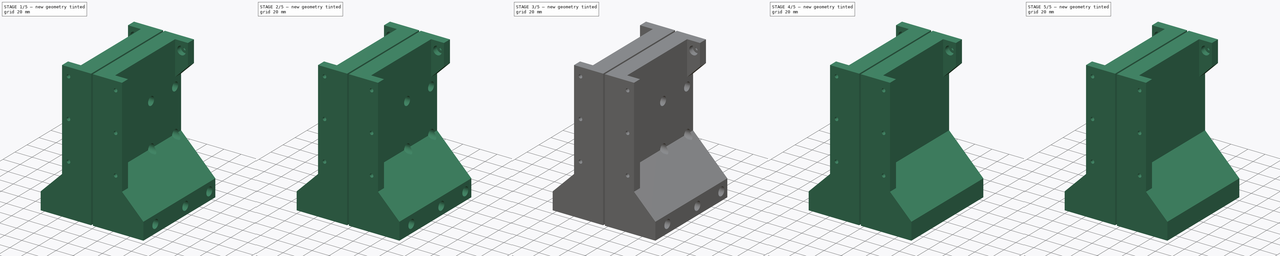
[diagram: build sequence overview — one tinted view per stage of 5, left to right]
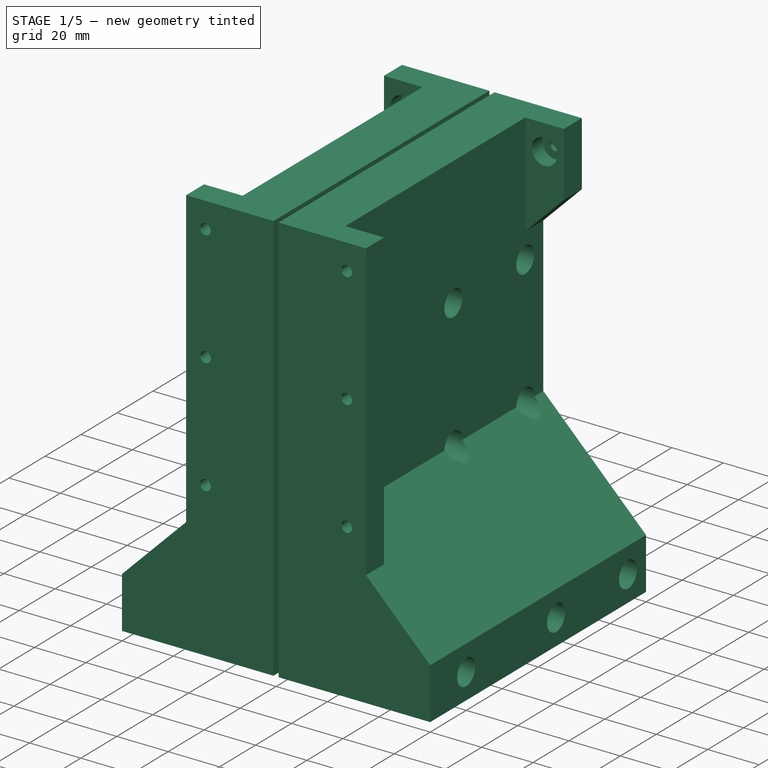
[diagram: stage 1 of 5 — iso view after this stage's code; geometry added in this stage tinted green]
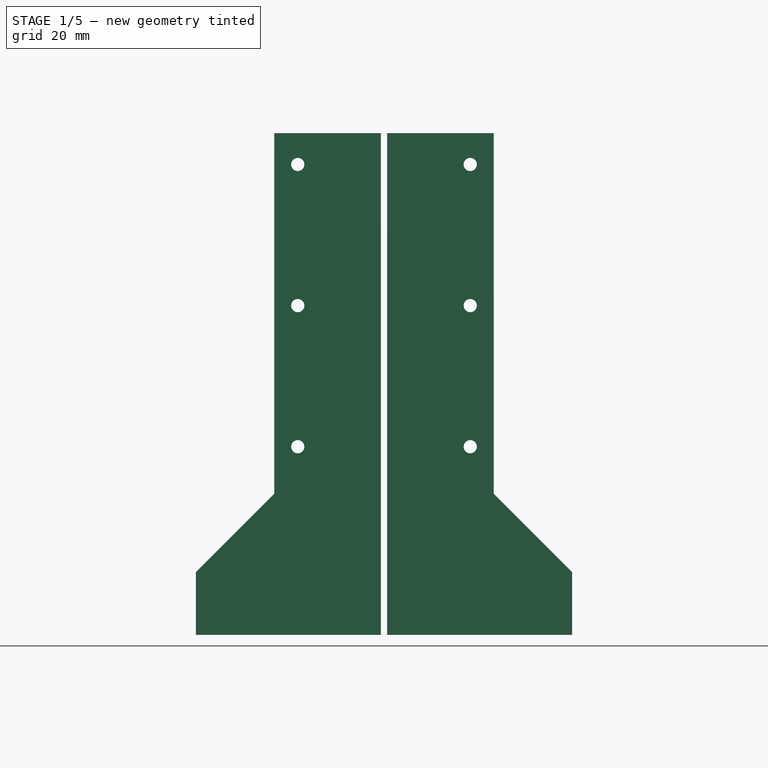
[diagram: stage 1 of 5 — front view after this stage's code; geometry added in this stage tinted green]
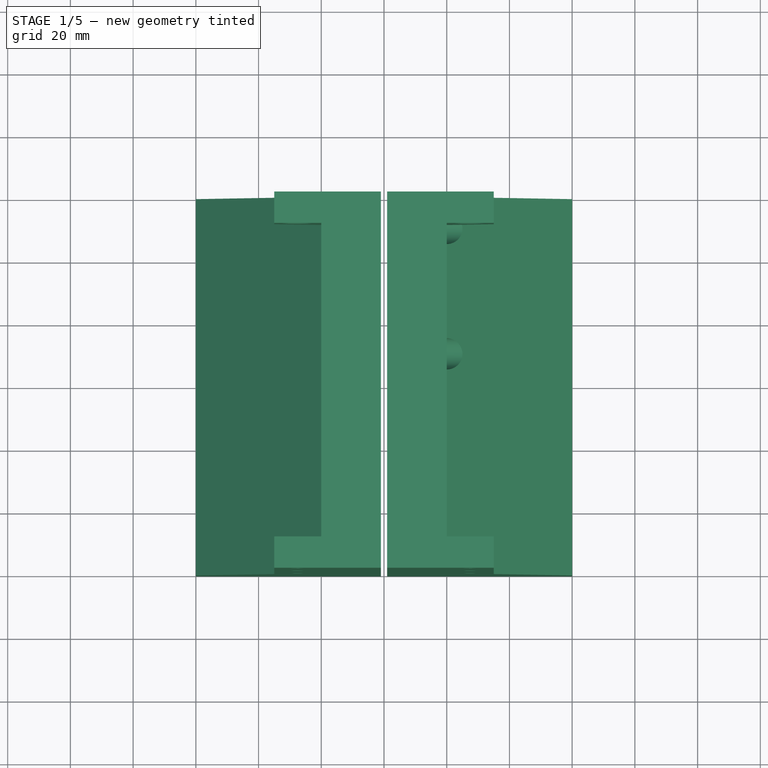
[diagram: stage 1 of 5 — top view after this stage's code; geometry added in this stage tinted green]
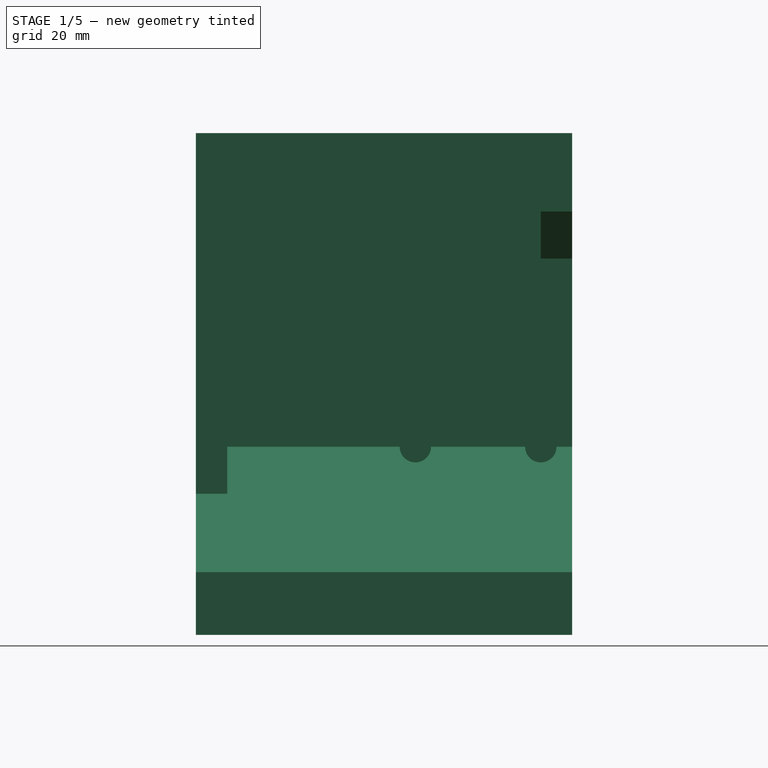
[diagram: stage 1 of 5 — right view after this stage's code; geometry added in this stage tinted green]
FCSTD DOCUMENT  (FreeCAD 2023.1231R38924 (Git))
Label: ClampMount_sym
License: All rights reserved
LicenseURL: https://en.wikipedia.org/wiki/All_rights_reserved
objects: Sketcher::SketchObject×10, PartDesign::Pocket×7, PartDesign::Solid×4, PartDesign::Pad×3, PartDesign::Split×2, PartDesign::CoordinateSystem×1, PartDesign::Body×1, PartDesign::ShapeBinder×1, PartDesign::Mirrored×1, App::Part×1
note: 64 computed .brp shape members not serialized (recipe doc carries the construction recipe); baked Part::Feature solids carry a one-line shape summary decoded from their .brp

FEATURE [Sketcher::SketchObject] Sketch002
  ArcFitTolerance = 1e-06
  AttachmentSupport = -> [YZ_Plane]
  ExternalBSplineMaxDegree = 5
  ExternalBSplineTolerance = 0.0001
  ExternalGeometry = -> [Split]
  FullyConstrained = true
  InternalTolerance = 1e-06
  InvalidShape = false
  MakeInternals = false
  MapMode = 5
  Placement = pos=(0,0,0) rot=(0.57735,0.57735,0.57735;2.0944rad)
  Support = -> [YZ_Plane]
  TreeRank = 19
  ValidateShape = false
  sketch-geometry (8):
    g0: LineSegment StartX=-115 StartY=150 StartZ=0 EndX=-5 EndY=150 EndZ=0
    g1: LineSegment StartX=-5 StartY=150 StartZ=0 EndX=-5 EndY=120 EndZ=0
    g2: LineSegment StartX=-115 StartY=120 StartZ=0 EndX=-115 EndY=150 EndZ=0
    g3: LineSegment StartX=-115 StartY=120 StartZ=0 EndX=-39.5 EndY=120 EndZ=0
    g4: LineSegment StartX=-39.5 StartY=120 StartZ=0 EndX=-39.5 EndY=0 EndZ=0
    g5: LineSegment StartX=-39.5 StartY=0 StartZ=0 EndX=-20 EndY=0 EndZ=0
    g6: LineSegment StartX=-20 StartY=0 StartZ=0 EndX=-20 EndY=120 EndZ=0
    g7: LineSegment StartX=-20 StartY=120 StartZ=0 EndX=-5 EndY=120 EndZ=0
  constraints (25):
    c: Coincident(g0,g1)
    c: Coincident(g2,g0)
    c: Horizontal(g0)
    c: Vertical(g1)
    c: Vertical(g2)
    c: DistanceX(g0,g0) = 110
    c: Coincident(g2,g3)
    c: Horizontal(g3)
    c: Coincident(g3,g4)
    c: PointOnObject(g4,g-1)
    c: Vertical(g4)
    c: Coincident(g4,g5)
    c: Horizontal(g5)
    c: Coincident(g5,g6)
    c: Vertical(g6)
    c: Coincident(g6,g7)
    c: Horizontal(g7)
    c: Coincident(g1,g7)
    c: DistanceX(g1,g-1) = 5
    c: DistanceX(g5,g5) = 19.5
    c: DistanceX(g7,g7) = 15
    c: DistanceY(g1,g1) = 30
    c: Horizontal(g3,g6)
    c: DistanceY(g0,g-3) = 10
    c: DistanceX(g3,g3) = 75.5
FEATURE [PartDesign::Pocket] Pocket001
  AddSubType = 1
  AlongSketchNormal = false
  AutoTaperInnerAngle = true
  BaseFeature = -> Split
  CheckUpToFaceLimits = true
  ClaimChildren = false
  Direction = (-1,2e-16,-3e-16)
  Fit = 0
  FitJoin = 0
  InnerFit = 0
  InnerFitJoin = 0
  InvalidShape = false
  Length = 6
  Length2 = 10
  Linearize = true
  Midplane = true
  NewSolid = false
  Profile = -> Sketch002
  ReferenceAxis = -> Sketch002 [N_Axis]
  Suppress = false
  TaperInnerAngle = 0
  TaperInnerAngleRev = 0
  TreeRank = 20
  Type = 0
  ValidateShape = true
  _ProfileBasedVersion = 1
  _Version = 1
FEATURE [PartDesign::Split] Split001
  BaseFeature = -> Mirrored
  Fragment = false
  InvalidShape = false
  Mode = 0
  NewSolid = false
  Solids = -> [Split001_i0,Split001_i1]
  Suppress = false
  Tolerance = 0
  TreeRank = 37
  ValidateShape = true
  _Version = 1
FEATURE [PartDesign::Solid] Split001_i0
  Active = false
  InvalidShape = false
  Parent = -> Split001
  TreeRank = 40
  ValidateShape = false
FEATURE [PartDesign::Solid] Split001_i1
  Active = true
  InvalidShape = false
  Parent = -> Split001
  TreeRank = 41
  ValidateShape = false
FEATURE [App::Part] Part  label="ClampMount1"
  ClaimAllChildren = false
  ExportMode = 1
  Group = -> [Body,Local_CS]
  Origin = -> Origin001
  TreeRank = 44
  _ExportChildren = -> [Body,Local_CS]
  _GroupVersion = 1
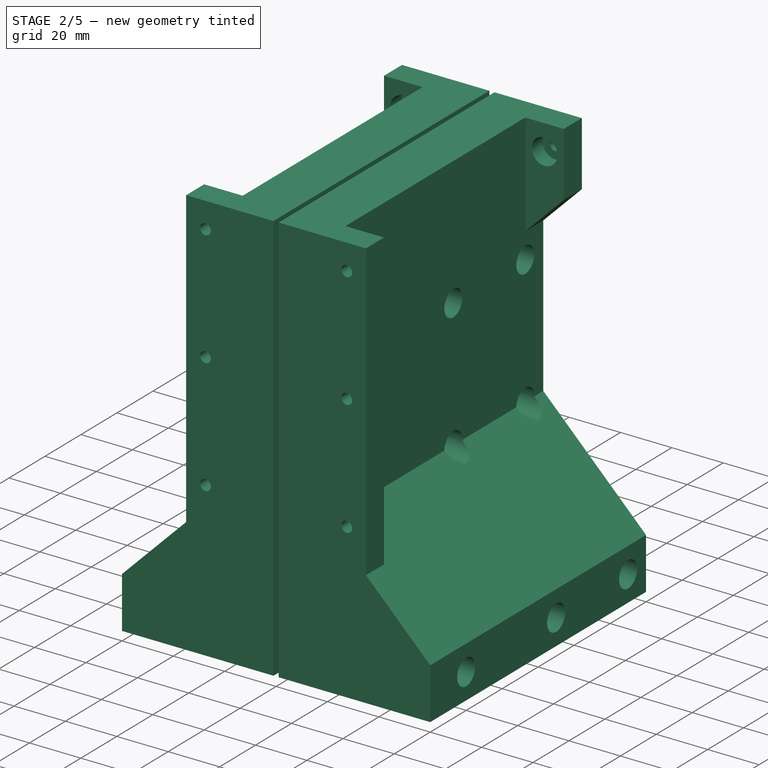
[diagram: stage 2 of 5 — iso view after this stage's code; geometry added in this stage tinted green]
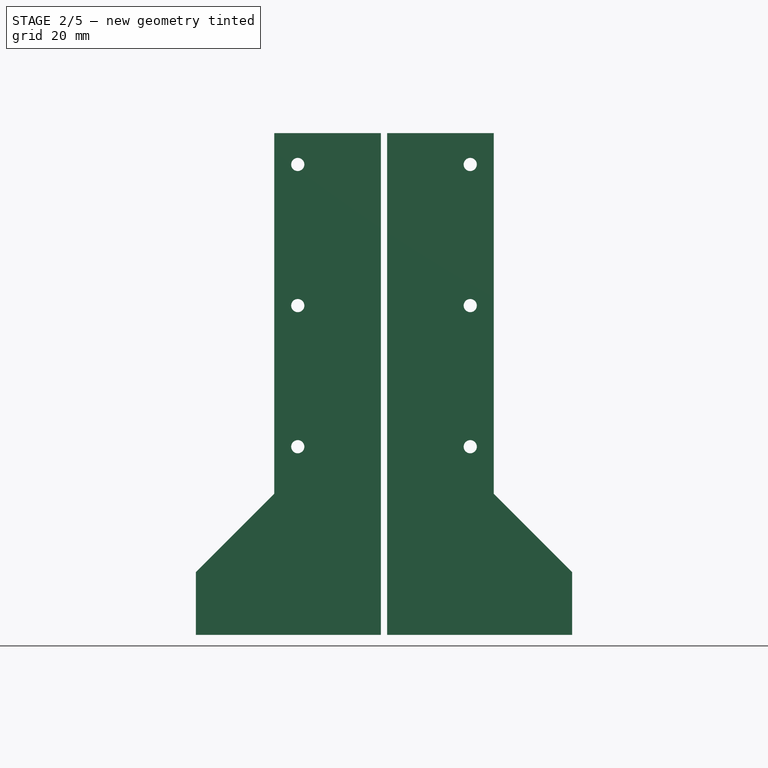
[diagram: stage 2 of 5 — front view after this stage's code; geometry added in this stage tinted green]
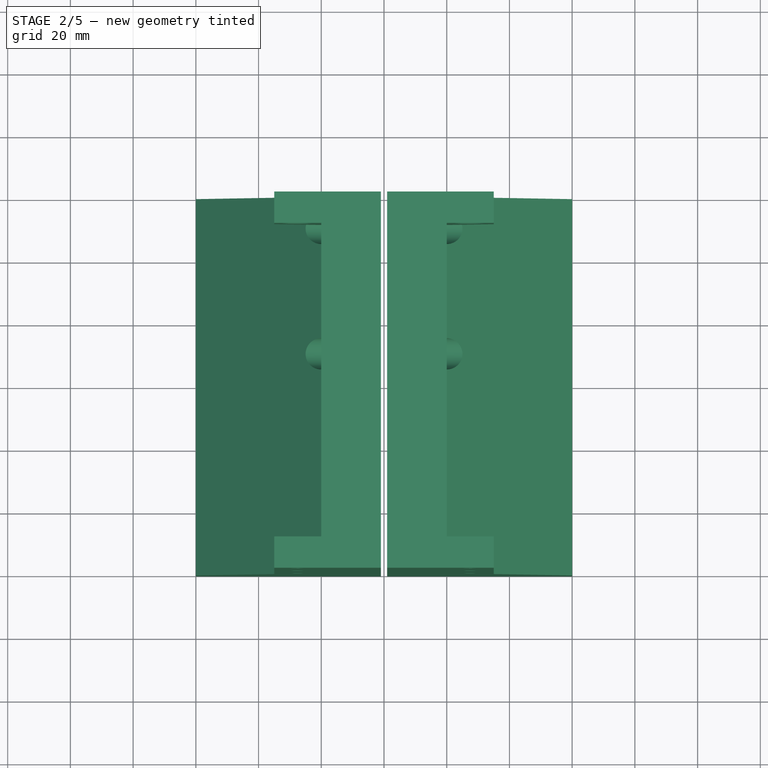
[diagram: stage 2 of 5 — top view after this stage's code; geometry added in this stage tinted green]
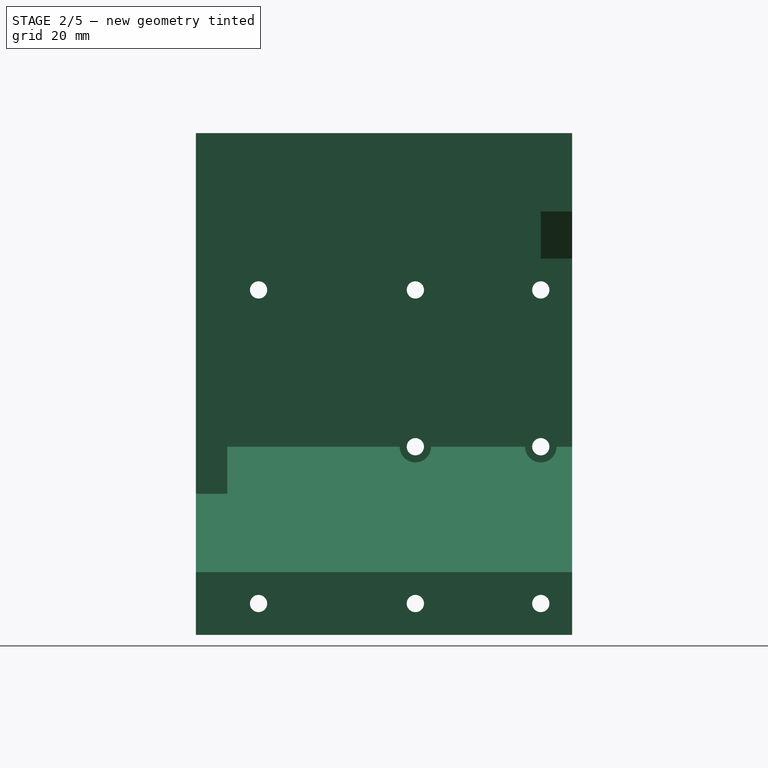
[diagram: stage 2 of 5 — right view after this stage's code; geometry added in this stage tinted green]
FEATURE [Sketcher::SketchObject] Sketch003
  ArcFitTolerance = 1e-06
  AttachmentSupport = -> [YZ_Plane]
  ExternalBSplineMaxDegree = 5
  ExternalBSplineTolerance = 0.0001
  ExternalGeometry = -> [Pocket001]
  FullyConstrained = true
  InternalTolerance = 1e-06
  InvalidShape = false
  MakeInternals = false
  MapMode = 5
  Placement = pos=(0,0,0) rot=(0.57735,0.57735,0.57735;2.0944rad)
  Support = -> [YZ_Plane]
  TreeRank = 21
  ValidateShape = false
  sketch-geometry (4):
    g0: LineSegment StartX=-115 StartY=120 StartZ=0 EndX=-5 EndY=120 EndZ=0
    g1: LineSegment StartX=-5 StartY=120 StartZ=0 EndX=-5 EndY=150 EndZ=0
    g2: LineSegment StartX=-5 StartY=150 StartZ=0 EndX=-115 EndY=150 EndZ=0
    g3: LineSegment StartX=-115 StartY=150 StartZ=0 EndX=-115 EndY=120 EndZ=0
  constraints (10):
    c: Coincident(g0,g1)
    c: Coincident(g1,g2)
    c: Coincident(g2,g3)
    c: Coincident(g3,g0)
    c: Horizontal(g0)
    c: Horizontal(g2)
    c: Vertical(g1)
    c: Vertical(g3)
    c: Coincident(g0,g-3)
    c: Coincident(g1,g-4)
FEATURE [PartDesign::Pocket] Pocket002
  AddSubType = 1
  AlongSketchNormal = false
  AutoTaperInnerAngle = true
  BaseFeature = -> Pocket001
  CheckUpToFaceLimits = true
  ClaimChildren = false
  Direction = (-1,2e-16,-3e-16)
  Fit = 0
  FitJoin = 0
  InnerFit = 0
  InnerFitJoin = 0
  InvalidShape = false
  Length = 24
  Length2 = 10
  Linearize = true
  Midplane = true
  NewSolid = false
  Profile = -> Sketch003
  ReferenceAxis = -> Sketch003 [N_Axis]
  Suppress = false
  TaperInnerAngle = 0
  TaperInnerAngleRev = 0
  TreeRank = 22
  Type = 0
  ValidateShape = true
  _ProfileBasedVersion = 1
  _Version = 1
FEATURE [PartDesign::Pocket] Pocket003
  AddSubType = 1
  AlongSketchNormal = false
  AutoTaperInnerAngle = true
  BaseFeature = -> Pocket002
  CheckUpToFaceLimits = true
  ClaimChildren = false
  Direction = (-1,2e-16,-3e-16)
  Fit = 0
  FitJoin = 0
  InnerFit = 0
  InnerFitJoin = 0
  InvalidShape = false
  Length = 5
  Length2 = 10
  Linearize = true
  NewSolid = false
  Profile = -> Sketch004
  ReferenceAxis = -> Sketch004 [N_Axis]
  Suppress = false
  TaperInnerAngle = 0
  TaperInnerAngleRev = 0
  TreeRank = 24
  Type = 1
  ValidateShape = true
  _ProfileBasedVersion = 1
  _Version = 1
FEATURE [PartDesign::Pocket] Pocket004
  AddSubType = 1
  AlongSketchNormal = false
  AutoTaperInnerAngle = true
  BaseFeature = -> Pocket003
  CheckUpToFaceLimits = true
  ClaimChildren = false
  Direction = (-1,2e-16,-3e-16)
  Fit = 0
  FitJoin = 0
  InnerFit = 0
  InnerFitJoin = 0
  InvalidShape = false
  Length = 5
  Length2 = 10
  Linearize = true
  NewSolid = false
  Profile = -> Sketch005
  ReferenceAxis = -> Sketch005 [N_Axis]
  Suppress = false
  TaperInnerAngle = 0
  TaperInnerAngleRev = 0
  TreeRank = 26
  Type = 1
  ValidateShape = true
  _ProfileBasedVersion = 1
  _Version = 1
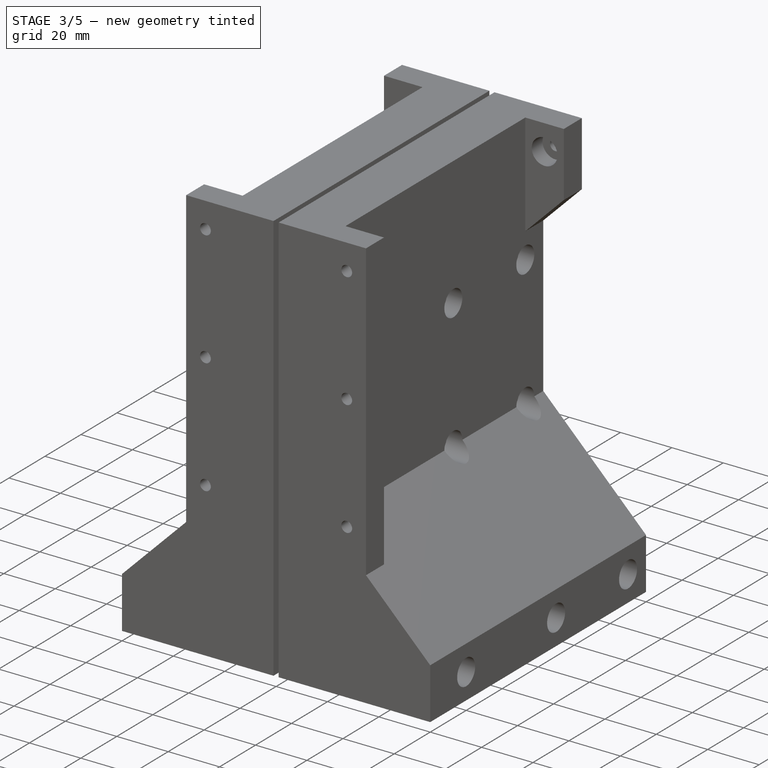
[diagram: stage 3 of 5 — iso view after this stage's code; geometry added in this stage tinted green]
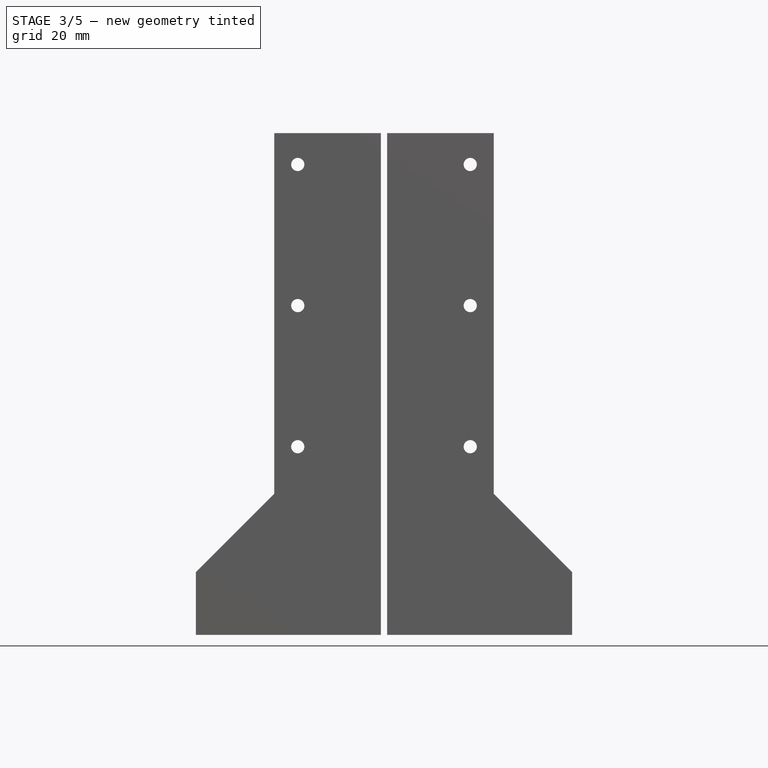
[diagram: stage 3 of 5 — front view after this stage's code; geometry added in this stage tinted green]
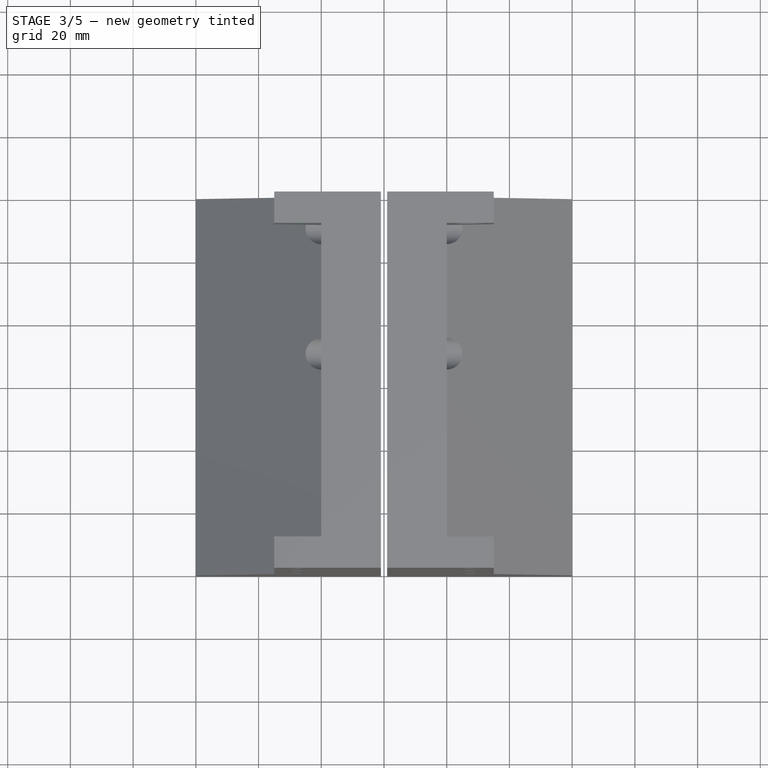
[diagram: stage 3 of 5 — top view after this stage's code; geometry added in this stage tinted green]
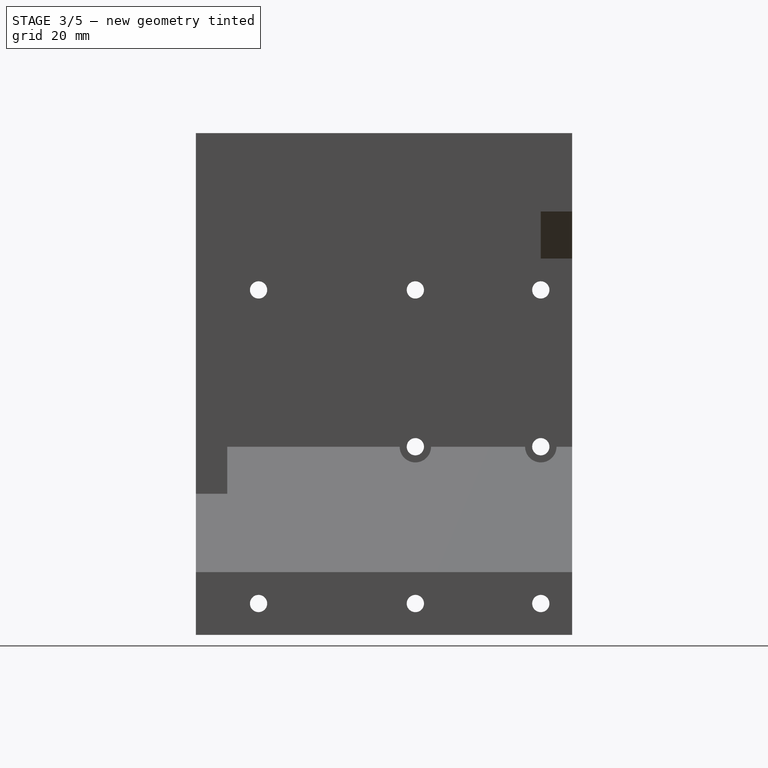
[diagram: stage 3 of 5 — right view after this stage's code; geometry added in this stage tinted green]
FEATURE [Sketcher::SketchObject] Sketch006
  ArcFitTolerance = 1e-06
  AttachmentSupport = -> [Pocket004]
  ExternalBSplineMaxDegree = 5
  ExternalBSplineTolerance = 0.0001
  ExternalGeometry = -> [Pocket004]
  FullyConstrained = true
  InternalTolerance = 1e-06
  InvalidShape = false
  MakeInternals = false
  MapMode = 5
  Placement = pos=(0,-120,2.64e-14) rot=(1,0,0;1.5708rad)
  Support = -> [Pocket004]
  TreeRank = 27
  ValidateShape = false
  sketch-geometry (10):
    g0: LineSegment StartX=-20 StartY=160 StartZ=0 EndX=-35 EndY=160 EndZ=0
    g1: LineSegment StartX=-35 StartY=160 StartZ=0 EndX=-35 EndY=45 EndZ=0
    g2: LineSegment StartX=-35 StartY=45 StartZ=0 EndX=-20 EndY=60 EndZ=0
    g3: LineSegment StartX=-20 StartY=60 StartZ=0 EndX=-20 EndY=160 EndZ=0
    g4: Circle CenterX=-27.5 CenterY=150 CenterZ=0 NormalX=0 NormalY=0 NormalZ=1 AngleXU=0 Radius=2.1
    g5: Circle CenterX=-27.5 CenterY=60 CenterZ=0 NormalX=0 NormalY=0 NormalZ=1 AngleXU=0 Radius=2.1
    g6: Circle CenterX=-27.5 CenterY=105 CenterZ=0 NormalX=0 NormalY=0 NormalZ=1 AngleXU=0 Radius=2.1
    g7: LineSegment [constr] StartX=-27.5 StartY=60 StartZ=0 EndX=-27.5 EndY=105 EndZ=0
    g8: LineSegment [constr] StartX=-27.5 StartY=105 StartZ=0 EndX=-27.5 EndY=150 EndZ=0
    g9: GeomPoint [constr] X=-27.5 Y=160 Z=0
  constraints (25):
    c: Coincident(g0,g1)
    c: Coincident(g1,g2)
    c: Coincident(g2,g3)
    c: Coincident(g3,g0)
    c: Horizontal(g0)
    c: Vertical(g1)
    c: Coincident(g0,g-3)
    c: DistanceX(g0,g0) = 15
    c: Coincident(g-4,g2)
    c: Parallel(g-4,g2)
    c: Equal(g6,g4)
    c: Equal(g4,g5)
    c: Coincident(g7,g5)
    c: Coincident(g7,g6)
    c: Vertical(g7)
    c: Coincident(g8,g6)
    c: Coincident(g8,g4)
    c: Vertical(g8)
    c: Equal(g7,g8)
    c: DistanceY(g8,g8) = 45
    c: Diameter(g6) = 4.2
    c: Symmetric(g0,g0,g9)
    c: Vertical(g9,g4)
    c: DistanceY(g4,g0) = 10
    c: DistanceX(g4,g-1) = 27.5
FEATURE [PartDesign::Pad] Pad001
  AddSubType = 0
  AlongSketchNormal = false
  AutoTaperInnerAngle = true
  BaseFeature = -> Pocket004
  CheckUpToFaceLimits = true
  ClaimChildren = false
  Direction = (0,-1,2e-16)
  Fit = 0
  FitJoin = 0
  InnerFit = 0
  InnerFitJoin = 0
  InvalidShape = false
  Length = 10
  Length2 = 10
  Linearize = true
  NewSolid = false
  Profile = -> Sketch006
  ReferenceAxis = -> Sketch006 [N_Axis]
  Reversed = true
  Suppress = false
  TaperInnerAngle = 0
  TaperInnerAngleRev = 0
  TreeRank = 28
  Type = 0
  ValidateShape = true
  _ProfileBasedVersion = 1
FEATURE [Sketcher::SketchObject] Sketch007
  ArcFitTolerance = 1e-06
  AttachmentSupport = -> [Pad001]
  ExternalBSplineMaxDegree = 5
  ExternalBSplineTolerance = 0.0001
  ExternalGeometry = -> [Pad001]
  FullyConstrained = true
  InternalTolerance = 1e-06
  InvalidShape = false
  MakeInternals = false
  MapMode = 5
  Placement = pos=(0,1e-16,0) rot=(0,0.707107,0.707107;3.14159rad)
  Support = -> [Pad001]
  TreeRank = 29
  ValidateShape = false
  sketch-geometry (4):
    g0: LineSegment StartX=35 StartY=160 StartZ=0 EndX=20 EndY=160 EndZ=0
    g1: LineSegment StartX=20 StartY=160 StartZ=0 EndX=20 EndY=120 EndZ=0
    g2: LineSegment StartX=20 StartY=120 StartZ=0 EndX=35 EndY=135 EndZ=0
    g3: LineSegment StartX=35 StartY=135 StartZ=0 EndX=35 EndY=160 EndZ=0
  constraints (12):
    c: Coincident(g0,g1)
    c: Coincident(g1,g2)
    c: Coincident(g2,g3)
    c: Coincident(g3,g0)
    c: Horizontal(g0)
    c: Vertical(g1)
    c: Vertical(g3)
    c: Coincident(g0,g-5)
    c: PointOnObject(g1,g-3)
    c: DistanceY(g3,g3) = 25
    c: Angle(g2,g1) = 0.785398
    c: DistanceX(g0,g0) = 15
FEATURE [PartDesign::Pad] Pad002
  AddSubType = 0
  AlongSketchNormal = false
  AutoTaperInnerAngle = true
  BaseFeature = -> Pad001
  CheckUpToFaceLimits = true
  ClaimChildren = false
  Direction = (0,1,-2e-16)
  Fit = 0
  FitJoin = 0
  InnerFit = 0
  InnerFitJoin = 0
  InvalidShape = false
  Length = 10
  Length2 = 10
  Linearize = true
  NewSolid = false
  Profile = -> Sketch007
  ReferenceAxis = -> Sketch007 [N_Axis]
  Reversed = true
  Suppress = false
  TaperInnerAngle = 0
  TaperInnerAngleRev = 0
  TreeRank = 30
  Type = 0
  ValidateShape = true
  _ProfileBasedVersion = 1
FEATURE [Sketcher::SketchObject] Sketch008
  ArcFitTolerance = 1e-06
  AttachmentSupport = -> [Pad002]
  ExternalBSplineMaxDegree = 5
  ExternalBSplineTolerance = 0.0001
  ExternalGeometry = -> [Pad002]
  FullyConstrained = true
  InternalTolerance = 1e-06
  InvalidShape = false
  MakeInternals = false
  MapMode = 5
  Placement = pos=(-7.2e-15,-110,1.46e-14) rot=(0,0.707107,0.707107;3.14159rad)
  Support = -> [Pad002]
  TreeRank = 31
  ValidateShape = false
  sketch-geometry (3):
    g0: Circle CenterX=27.5 CenterY=150 CenterZ=0 NormalX=0 NormalY=0 NormalZ=1 AngleXU=0 Radius=5
    g1: Circle CenterX=27.5 CenterY=105 CenterZ=0 NormalX=0 NormalY=0 NormalZ=1 AngleXU=0 Radius=5
    g2: Circle CenterX=27.5 CenterY=60 CenterZ=0 NormalX=0 NormalY=0 NormalZ=1 AngleXU=0 Radius=5
  constraints (6):
    c: Coincident(g0,g-3)
    c: Coincident(g1,g-4)
    c: Coincident(g2,g-5)
    c: Equal(g0,g1)
    c: Equal(g1,g2)
    c: Diameter(g0) = 10
FEATURE [PartDesign::Pocket] Pocket005
  AddSubType = 1
  AlongSketchNormal = false
  AutoTaperInnerAngle = true
  BaseFeature = -> Pad002
  CheckUpToFaceLimits = true
  ClaimChildren = false
  Direction = (-1e-16,-1,2e-16)
  Fit = 0
  FitJoin = 0
  InnerFit = 0
  InnerFitJoin = 0
  InvalidShape = false
  Length = 6
  Length2 = 10
  Linearize = true
  NewSolid = false
  Profile = -> Sketch008
  ReferenceAxis = -> Sketch008 [N_Axis]
  Suppress = false
  TaperInnerAngle = 0
  TaperInnerAngleRev = 0
  TreeRank = 32
  Type = 0
  ValidateShape = true
  _ProfileBasedVersion = 1
  _Version = 1
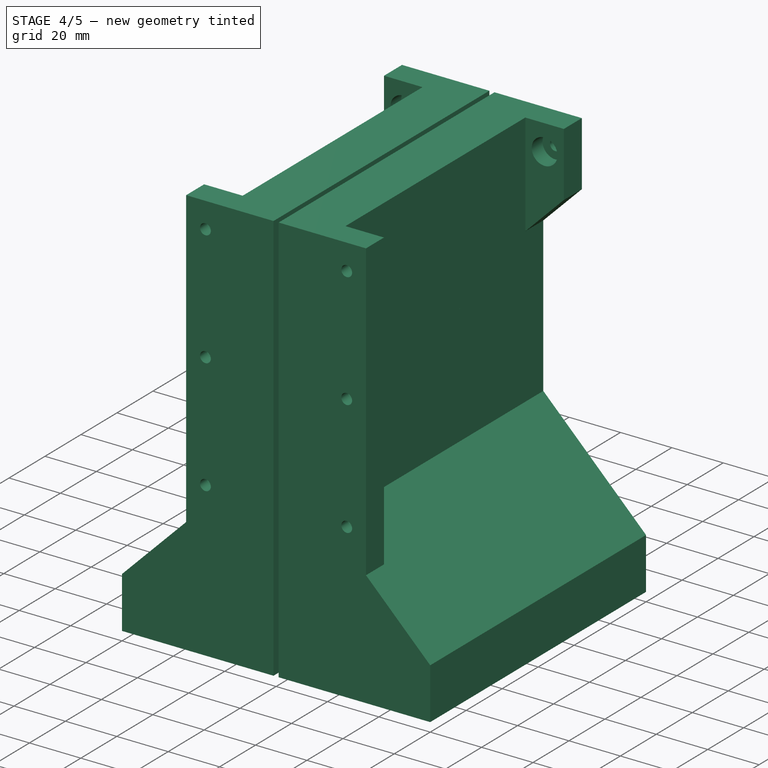
[diagram: stage 4 of 5 — iso view after this stage's code; geometry added in this stage tinted green]
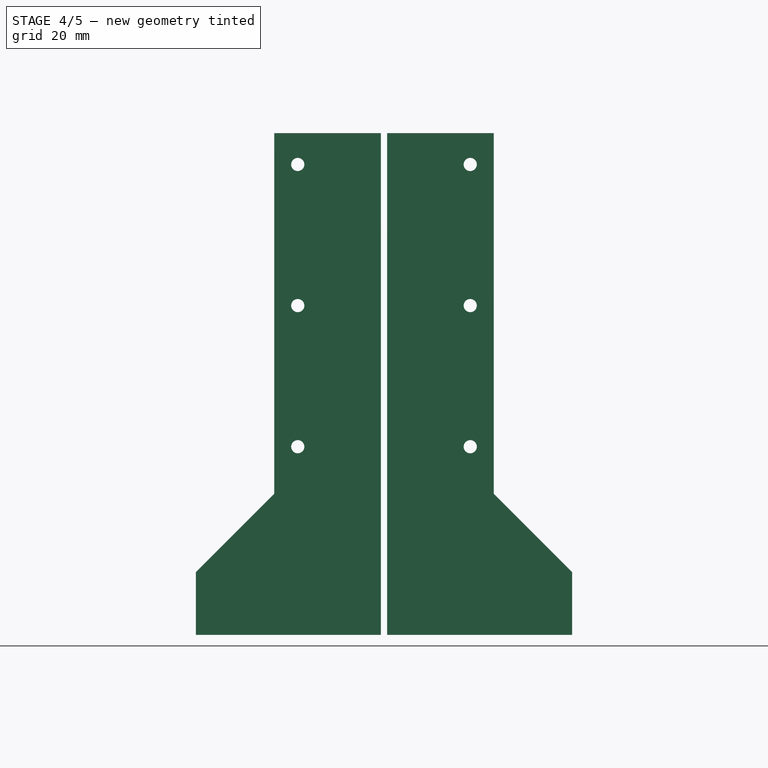
[diagram: stage 4 of 5 — front view after this stage's code; geometry added in this stage tinted green]
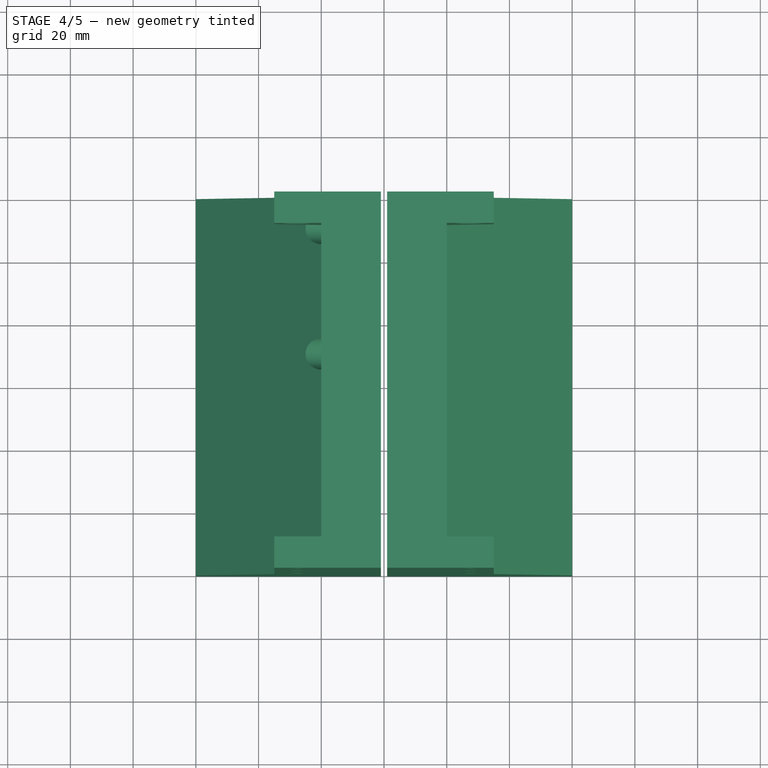
[diagram: stage 4 of 5 — top view after this stage's code; geometry added in this stage tinted green]
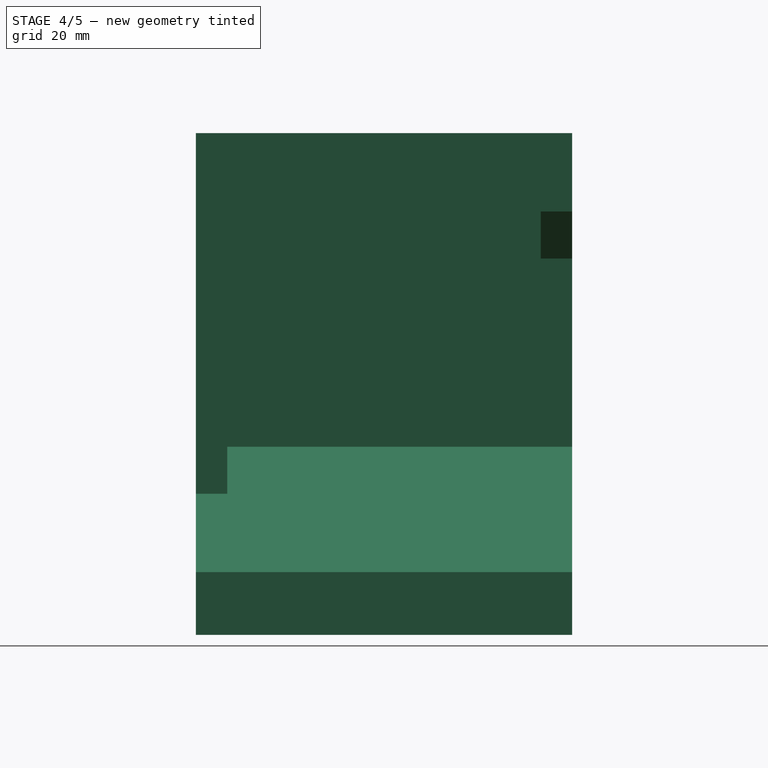
[diagram: stage 4 of 5 — right view after this stage's code; geometry added in this stage tinted green]
FEATURE [PartDesign::Solid] Split_i1
  Active = false
  InvalidShape = false
  Parent = -> Split
  TreeRank = 18
  ValidateShape = false
FEATURE [Sketcher::SketchObject] Sketch009
  ArcFitTolerance = 1e-06
  AttachmentSupport = -> [Pocket005]
  ExternalBSplineMaxDegree = 5
  ExternalBSplineTolerance = 0.0001
  ExternalGeometry = -> [Pocket005]
  FullyConstrained = true
  InternalTolerance = 1e-06
  InvalidShape = false
  MakeInternals = false
  MapMode = 5
  Placement = pos=(0,-10,2.1e-15) rot=(1,0,0;1.5708rad)
  Support = -> [Pocket005]
  TreeRank = 33
  ValidateShape = false
FEATURE [PartDesign::Pocket] Pocket006
  AddSubType = 1
  AlongSketchNormal = false
  AutoTaperInnerAngle = true
  BaseFeature = -> Pocket005
  CheckUpToFaceLimits = true
  ClaimChildren = false
  Direction = (0,1,-2e-16)
  Fit = 0
  FitJoin = 0
  InnerFit = 0
  InnerFitJoin = 0
  InvalidShape = false
  Length = 6
  Length2 = 10
  Linearize = true
  NewSolid = false
  Profile = -> Sketch009
  ReferenceAxis = -> Sketch009 [N_Axis]
  Suppress = false
  TaperInnerAngle = 0
  TaperInnerAngleRev = 0
  TreeRank = 34
  Type = 0
  ValidateShape = true
  _ProfileBasedVersion = 1
  _Version = 1
FEATURE [PartDesign::ShapeBinder] ShapeBinder
  InvalidShape = false
  Support = -> [Pocket006]
  TraceSupport = false
  TreeRank = 35
  ValidateShape = false
FEATURE [PartDesign::Mirrored] Mirrored
  AddSubType = 0
  BaseFeature = -> Pocket006
  CopyShape = false
  InvalidShape = false
  MirrorPlane = -> YZ_Plane
  NewSolid = false
  OriginalSubs = -> [ShapeBinder]
  Originals = -> [ShapeBinder]
  ParallelTransform = true
  SubTransform = true
  Suppress = false
  TreeRank = 36
  ValidateShape = true
  _Version = 3
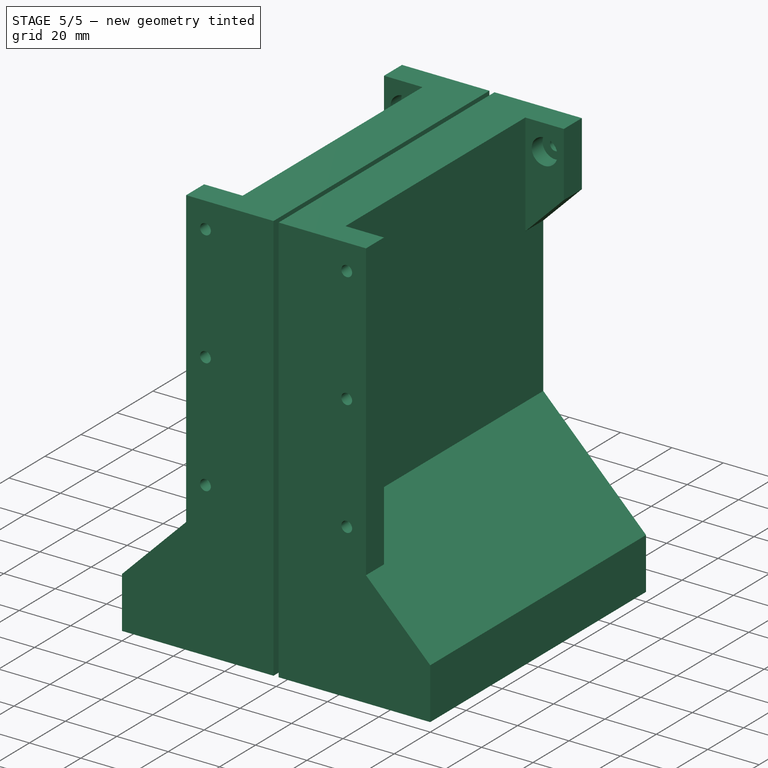
[diagram: stage 5 of 5 — iso view after this stage's code; geometry added in this stage tinted green]
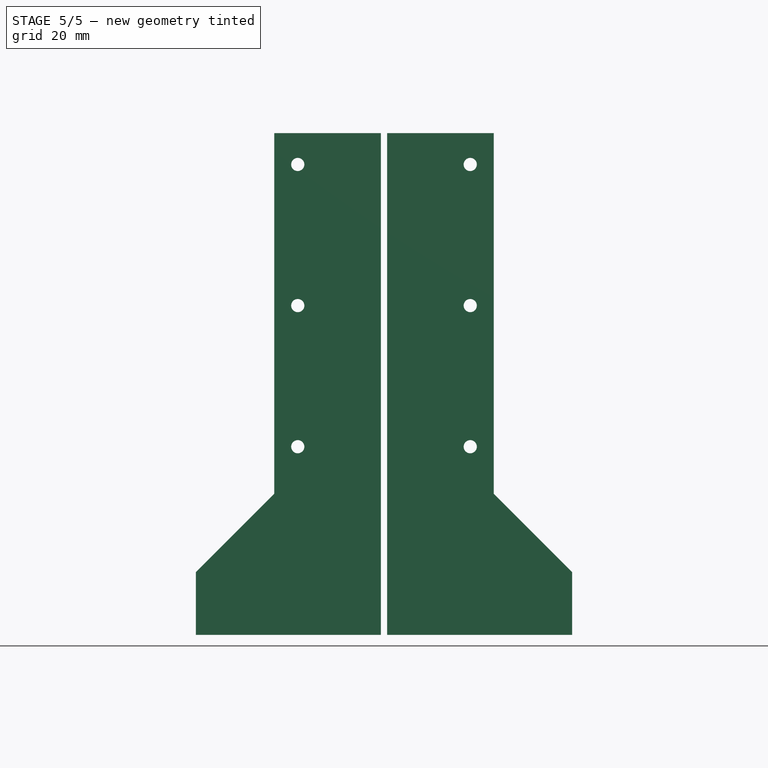
[diagram: stage 5 of 5 — front view after this stage's code; geometry added in this stage tinted green]
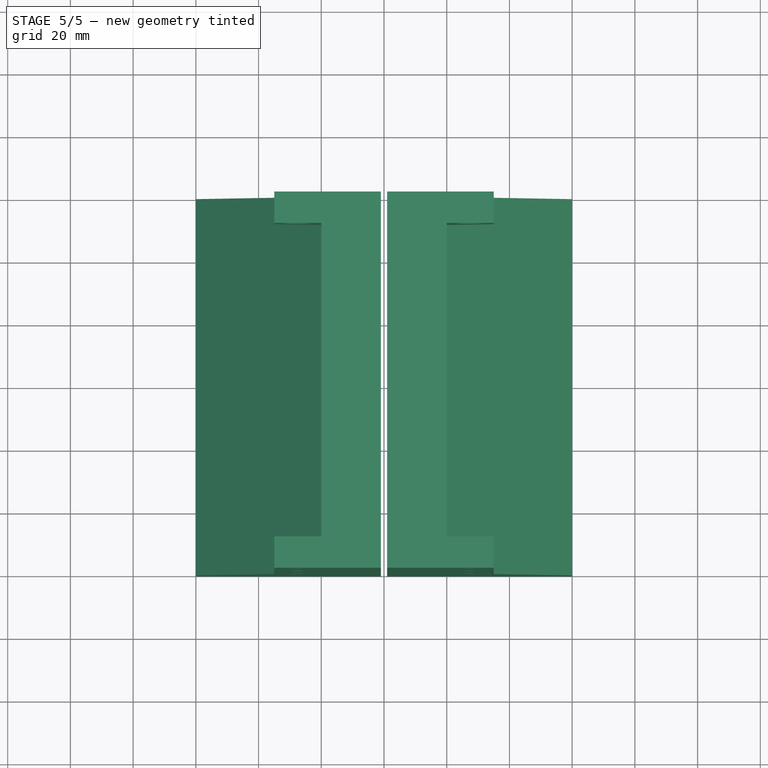
[diagram: stage 5 of 5 — top view after this stage's code; geometry added in this stage tinted green]
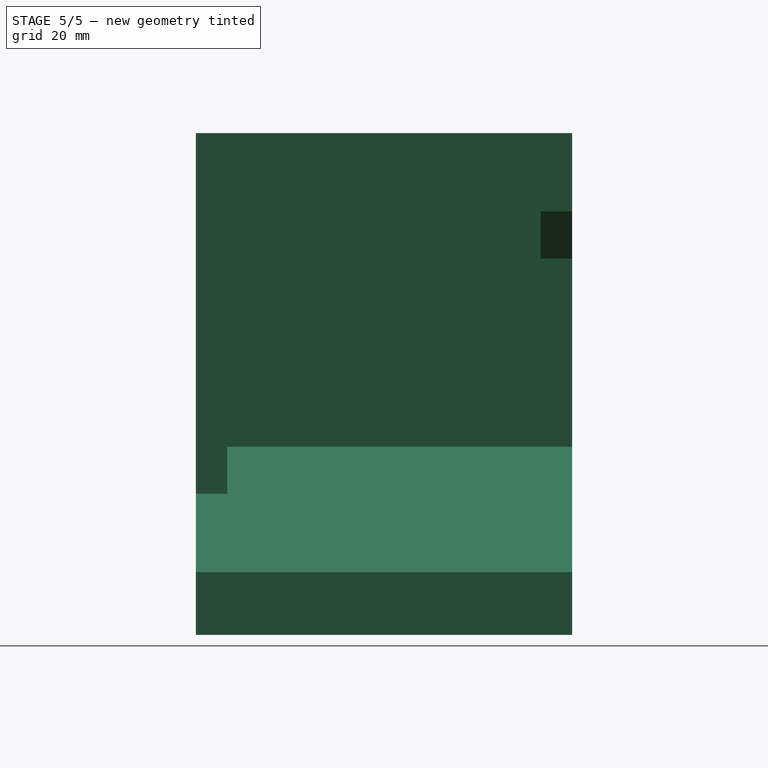
[diagram: stage 5 of 5 — right view after this stage's code; geometry added in this stage tinted green]
FEATURE [Sketcher::SketchObject] Sketch
  ArcFitTolerance = 1e-06
  AttachmentSupport = -> [XZ_Plane]
  ExternalBSplineMaxDegree = 5
  ExternalBSplineTolerance = 0.0001
  FullyConstrained = true
  InternalTolerance = 1e-06
  InvalidShape = false
  MakeInternals = false
  MapMode = 5
  Placement = pos=(0,0,0) rot=(1,0,0;1.5708rad)
  Support = -> [XZ_Plane]
  TreeRank = 10
  ValidateShape = false
  sketch-geometry (9):
    g0: LineSegment StartX=0 StartY=0 StartZ=0 EndX=-60 EndY=0 EndZ=0
    g1: LineSegment StartX=-60 StartY=0 StartZ=0 EndX=-60 EndY=20 EndZ=0
    g2: LineSegment StartX=-60 StartY=20 StartZ=0 EndX=-20 EndY=60 EndZ=0
    g3: LineSegment StartX=-20 StartY=60 StartZ=0 EndX=-20 EndY=160 EndZ=0
    g4: LineSegment StartX=-20 StartY=160 StartZ=0 EndX=20 EndY=160 EndZ=0
    g5: LineSegment StartX=20 StartY=160 StartZ=0 EndX=20 EndY=60 EndZ=0
    g6: LineSegment StartX=20 StartY=60 StartZ=0 EndX=60 EndY=20 EndZ=0
    g7: LineSegment StartX=60 StartY=20 StartZ=0 EndX=60 EndY=0 EndZ=0
    g8: LineSegment StartX=60 StartY=0 StartZ=0 EndX=0 EndY=0 EndZ=0
  constraints (24):
    c: Coincident(g0,g1)
    c: Coincident(g1,g2)
    c: Coincident(g2,g3)
    c: Vertical(g3)
    c: Coincident(g3,g4)
    c: Coincident(g4,g5)
    c: Vertical(g5)
    c: Coincident(g5,g6)
    c: Coincident(g6,g7)
    c: Vertical(g7)
    c: Coincident(g7,g8)
    c: Coincident(g8,g-1)
    c: Horizontal(g8)
    c: Coincident(g0,g8)
    c: Symmetric(g0,g7,g-2)
    c: Vertical(g1)
    c: Horizontal(g4)
    c: Symmetric(g2,g5,g-2)
    c: Equal(g1,g7)
    c: DistanceX(g0,g7) = 120
    c: DistanceY(g7,g4) = 160
    c: DistanceX(g4,g4) = 40
    c: DistanceY(g1,g1) = 20
    c: DistanceY(g2,g2) = 40
FEATURE [PartDesign::Pad] Pad
  AddSubType = 0
  AlongSketchNormal = false
  AutoTaperInnerAngle = true
  CheckUpToFaceLimits = true
  ClaimChildren = false
  Direction = (0,-1,2e-16)
  Fit = 0
  FitJoin = 0
  InnerFit = 0
  InnerFitJoin = 0
  InvalidShape = false
  Length = 120
  Length2 = 10
  Linearize = true
  NewSolid = false
  Profile = -> Sketch
  ReferenceAxis = -> Sketch [N_Axis]
  Suppress = false
  TaperInnerAngle = 0
  TaperInnerAngleRev = 0
  TreeRank = 11
  Type = 0
  ValidateShape = true
  _ProfileBasedVersion = 1
FEATURE [Sketcher::SketchObject] Sketch001
  ArcFitTolerance = 1e-06
  AttachmentSupport = -> [Pad]
  ExternalBSplineMaxDegree = 5
  ExternalBSplineTolerance = 0.0001
  ExternalGeometry = -> [Pad]
  FullyConstrained = true
  InternalTolerance = 1e-06
  InvalidShape = false
  MakeInternals = false
  MapMode = 5
  Placement = pos=(0,-120,2.66e-14) rot=(1,0,0;1.5708rad)
  Support = -> [Pad]
  TreeRank = 12
  ValidateShape = false
  sketch-geometry (4):
    g0: LineSegment StartX=-1 StartY=0 StartZ=0 EndX=1 EndY=0 EndZ=0
    g1: LineSegment StartX=1 StartY=0 StartZ=0 EndX=1 EndY=160 EndZ=0
    g2: LineSegment StartX=1 StartY=160 StartZ=0 EndX=-1 EndY=160 EndZ=0
    g3: LineSegment StartX=-1 StartY=160 StartZ=0 EndX=-1 EndY=0 EndZ=0
  constraints (11):
    c: Coincident(g0,g1)
    c: Coincident(g1,g2)
    c: Coincident(g2,g3)
    c: Coincident(g3,g0)
    c: Horizontal(g0)
    c: Horizontal(g2)
    c: Vertical(g1)
    c: Vertical(g3)
    c: Symmetric(g0,g0,g-1)
    c: Horizontal(g2,g-3)
    c: DistanceX(g0,g0) = 2
FEATURE [PartDesign::Pocket] Pocket
  AddSubType = 1
  AlongSketchNormal = false
  AutoTaperInnerAngle = true
  BaseFeature = -> Pad
  CheckUpToFaceLimits = true
  ClaimChildren = false
  Direction = (0,1,-2e-16)
  Fit = 0
  FitJoin = 0
  InnerFit = 0
  InnerFitJoin = 0
  InvalidShape = false
  Length = 5
  Length2 = 10
  Linearize = true
  NewSolid = false
  Profile = -> Sketch001
  ReferenceAxis = -> Sketch001 [N_Axis]
  Suppress = false
  TaperInnerAngle = 0
  TaperInnerAngleRev = 0
  TreeRank = 13
  Type = 1
  ValidateShape = true
  _ProfileBasedVersion = 1
  _Version = 1
FEATURE [Sketcher::SketchObject] Sketch004
  ArcFitTolerance = 1e-06
  AttachmentSupport = -> [YZ_Plane]
  ExternalBSplineMaxDegree = 5
  ExternalBSplineTolerance = 0.0001
  FullyConstrained = true
  InternalTolerance = 1e-06
  InvalidShape = false
  MakeInternals = false
  MapMode = 5
  Placement = pos=(0,0,0) rot=(0.57735,0.57735,0.57735;2.0944rad)
  Support = -> [YZ_Plane]
  TreeRank = 23
  ValidateShape = false
  sketch-geometry (21):
    g0: Circle CenterX=-10 CenterY=110 CenterZ=0 NormalX=0 NormalY=0 NormalZ=1 AngleXU=0 Radius=2.75
    g1: Circle CenterX=-10 CenterY=10 CenterZ=0 NormalX=0 NormalY=0 NormalZ=1 AngleXU=0 Radius=2.75
    g2: Circle CenterX=-10 CenterY=60 CenterZ=0 NormalX=0 NormalY=0 NormalZ=1 AngleXU=0 Radius=2.75
    g3: Circle CenterX=-50 CenterY=110 CenterZ=0 NormalX=0 NormalY=0 NormalZ=1 AngleXU=0 Radius=2.75
    g4: Circle CenterX=-50 CenterY=60 CenterZ=0 NormalX=0 NormalY=0 NormalZ=1 AngleXU=0 Radius=2.75
    g5: Circle CenterX=-50 CenterY=10 CenterZ=0 NormalX=0 NormalY=0 NormalZ=1 AngleXU=0 Radius=2.75
    g6: Circle CenterX=-100 CenterY=110 CenterZ=0 NormalX=0 NormalY=0 NormalZ=1 AngleXU=0 Radius=2.75
    g7: Circle CenterX=-100 CenterY=10 CenterZ=0 NormalX=0 NormalY=0 NormalZ=1 AngleXU=0 Radius=2.75
    g8: LineSegment [constr] StartX=-10 StartY=110 StartZ=0 EndX=-50 EndY=110 EndZ=0
    g9: LineSegment [constr] StartX=-50 StartY=110 StartZ=0 EndX=-50 EndY=60 EndZ=0
    g10: LineSegment [constr] StartX=-50 StartY=60 StartZ=0 EndX=-10 EndY=60 EndZ=0
    g11: LineSegment [constr] StartX=-10 StartY=60 StartZ=0 EndX=-10 EndY=110 EndZ=0
    g12: LineSegment [constr] StartX=-50 StartY=60 StartZ=0 EndX=-10 EndY=60 EndZ=0
    g13: LineSegment [constr] StartX=-10 StartY=60 StartZ=0 EndX=-10 EndY=10 EndZ=0
    g14: LineSegment [constr] StartX=-10 StartY=10 StartZ=0 EndX=-50 EndY=10 EndZ=0
    g15: LineSegment [constr] StartX=-50 StartY=10 StartZ=0 EndX=-50 EndY=60 EndZ=0
    g16: LineSegment [constr] StartX=-10 StartY=10 StartZ=0 EndX=-100 EndY=10 EndZ=0
    g17: LineSegment [constr] StartX=-100 StartY=10 StartZ=0 EndX=-100 EndY=110 EndZ=0
    g18: LineSegment [constr] StartX=-100 StartY=110 StartZ=0 EndX=-10 EndY=110 EndZ=0
    g19: LineSegment [constr] StartX=-10 StartY=110 StartZ=0 EndX=-10 EndY=10 EndZ=0
    g20: Circle [constr] CenterX=-10 CenterY=110 CenterZ=0 NormalX=0 NormalY=0 NormalZ=1 AngleXU=0 Radius=2.1
  constraints (51):
    c: Equal(g0,g1)
    c: Equal(g1,g2)
    c: Equal(g2,g3)
    c: Equal(g3,g4)
    c: Equal(g4,g5)
    c: Equal(g5,g6)
    c: Equal(g6,g7)
    c: Diameter(g0) = 5.5
    c: Coincident(g8,g9)
    c: Coincident(g9,g10)
    c: Coincident(g10,g11)
    c: Coincident(g11,g8)
    c: Horizontal(g8)
    c: Horizontal(g10)
    c: Vertical(g9)
    c: Vertical(g11)
    c: Coincident(g8,g0)
    c: Coincident(g12,g13)
    c: Coincident(g13,g14)
    c: Coincident(g14,g15)
    c: Coincident(g15,g12)
    c: Horizontal(g12)
    c: Horizontal(g14)
    c: Vertical(g13)
    c: Vertical(g15)
    c: Coincident(g12,g9)
    c: Coincident(g13,g1)
    c: Coincident(g16,g17)
    c: Coincident(g17,g18)
    c: Coincident(g18,g19)
    c: Coincident(g19,g16)
    c: Horizontal(g16)
    c: Horizontal(g18)
    c: Vertical(g17)
    c: Vertical(g19)
    c: Coincident(g16,g1)
    c: Coincident(g17,g6)
    c: Coincident(g16,g7)
    c: Coincident(g3,g8)
    c: Coincident(g0,g18)
    c: Coincident(g10,g2)
    c: Coincident(g4,g9)
    c: Coincident(g5,g14)
    c: DistanceX(g1,g-1) = 10
    c: DistanceY(g-1,g1) = 10
    c: Equal(g13,g11)
    c: DistanceX(g14,g14) = 40
    c: DistanceY(g1,g0) = 100
    c: DistanceX(g16,g16) = 90
    c: Coincident(g20,g0)
    c: Diameter(g20) = 4.2
FEATURE [Sketcher::SketchObject] Sketch005
  ArcFitTolerance = 1e-06
  AttachmentOffset = pos=(0,0,-14) rot=(0,0,1;0rad)
  AttachmentSupport = -> [YZ_Plane]
  ExternalBSplineMaxDegree = 5
  ExternalBSplineTolerance = 0.0001
  FullyConstrained = true
  InternalTolerance = 1e-06
  InvalidShape = false
  MakeInternals = false
  MapMode = 5
  Placement = pos=(-14,3.1e-15,-3.1e-15) rot=(0.57735,0.57735,0.57735;2.0944rad)
  Support = -> [YZ_Plane]
  TreeRank = 25
  ValidateShape = false
  sketch-geometry (20):
    g0: Circle CenterX=-10 CenterY=110 CenterZ=0 NormalX=0 NormalY=0 NormalZ=1 AngleXU=0 Radius=5
    g1: Circle CenterX=-10 CenterY=10 CenterZ=0 NormalX=0 NormalY=0 NormalZ=1 AngleXU=0 Radius=5
    g2: Circle CenterX=-10 CenterY=60 CenterZ=0 NormalX=0 NormalY=0 NormalZ=1 AngleXU=0 Radius=5
    g3: Circle CenterX=-50 CenterY=110 CenterZ=0 NormalX=0 NormalY=0 NormalZ=1 AngleXU=0 Radius=5
    g4: Circle CenterX=-50 CenterY=60 CenterZ=0 NormalX=0 NormalY=0 NormalZ=1 AngleXU=0 Radius=5
    g5: Circle CenterX=-50 CenterY=10 CenterZ=0 NormalX=0 NormalY=0 NormalZ=1 AngleXU=0 Radius=5
    g6: Circle CenterX=-100 CenterY=110 CenterZ=0 NormalX=0 NormalY=0 NormalZ=1 AngleXU=0 Radius=5
    g7: Circle CenterX=-100 CenterY=10 CenterZ=0 NormalX=0 NormalY=0 NormalZ=1 AngleXU=0 Radius=5
    g8: LineSegment [constr] StartX=-10 StartY=110 StartZ=0 EndX=-50 EndY=110 EndZ=0
    g9: LineSegment [constr] StartX=-50 StartY=110 StartZ=0 EndX=-50 EndY=60 EndZ=0
    g10: LineSegment [constr] StartX=-50 StartY=60 StartZ=0 EndX=-10 EndY=60 EndZ=0
    g11: LineSegment [constr] StartX=-10 StartY=60 StartZ=0 EndX=-10 EndY=110 EndZ=0
    g12: LineSegment [constr] StartX=-50 StartY=60 StartZ=0 EndX=-10 EndY=60 EndZ=0
    g13: LineSegment [constr] StartX=-10 StartY=60 StartZ=0 EndX=-10 EndY=10 EndZ=0
    g14: LineSegment [constr] StartX=-10 StartY=10 StartZ=0 EndX=-50 EndY=10 EndZ=0
    g15: LineSegment [constr] StartX=-50 StartY=10 StartZ=0 EndX=-50 EndY=60 EndZ=0
    g16: LineSegment [constr] StartX=-10 StartY=10 StartZ=0 EndX=-100 EndY=10 EndZ=0
    g17: LineSegment [constr] StartX=-100 StartY=10 StartZ=0 EndX=-100 EndY=110 EndZ=0
    g18: LineSegment [constr] StartX=-100 StartY=110 StartZ=0 EndX=-10 EndY=110 EndZ=0
    g19: LineSegment [constr] StartX=-10 StartY=110 StartZ=0 EndX=-10 EndY=10 EndZ=0
  constraints (49):
    c: Equal(g0,g1)
    c: Equal(g1,g2)
    c: Equal(g2,g3)
    c: Equal(g3,g4)
    c: Equal(g4,g5)
    c: Equal(g5,g6)
    c: Equal(g6,g7)
    c: Diameter(g0) = 10
    c: Coincident(g8,g9)
    c: Coincident(g9,g10)
    c: Coincident(g10,g11)
    c: Coincident(g11,g8)
    c: Horizontal(g8)
    c: Horizontal(g10)
    c: Vertical(g9)
    c: Vertical(g11)
    c: Coincident(g8,g0)
    c: Coincident(g12,g13)
    c: Coincident(g13,g14)
    c: Coincident(g14,g15)
    c: Coincident(g15,g12)
    c: Horizontal(g12)
    c: Horizontal(g14)
    c: Vertical(g13)
    c: Vertical(g15)
    c: Coincident(g12,g9)
    c: Coincident(g13,g1)
    c: Coincident(g16,g17)
    c: Coincident(g17,g18)
    c: Coincident(g18,g19)
    c: Coincident(g19,g16)
    c: Horizontal(g16)
    c: Horizontal(g18)
    c: Vertical(g17)
    c: Vertical(g19)
    c: Coincident(g16,g1)
    c: Coincident(g17,g6)
    c: Coincident(g16,g7)
    c: Coincident(g3,g8)
    c: Coincident(g0,g18)
    c: Coincident(g10,g2)
    c: Coincident(g4,g9)
    c: Coincident(g5,g14)
    c: DistanceX(g1,g-1) = 10
    c: DistanceY(g-1,g1) = 10
    c: Equal(g13,g11)
    c: DistanceX(g14,g14) = 40
    c: DistanceY(g1,g0) = 100
    c: DistanceX(g16,g16) = 90
FEATURE [PartDesign::CoordinateSystem] Local_CS
  AttacherType = Attacher::AttachEngine3D
  AttachmentSupport = -> [YZ_Plane001]
  InvalidShape = false
  MapMode = 5
  Placement = pos=(0,0,0) rot=(0.57735,0.57735,0.57735;2.0944rad)
  Support = -> [YZ_Plane001]
  TreeRank = 45
  ValidateShape = false
FEATURE [PartDesign::Body] Body
  AutoGroupSolids = false
  ClaimAllChildren = false
  ExportMode = 0
  Group = -> [Sketch,Pad,Sketch001,Pocket,Split,Split_i0,Split_i1,Sketch002,Pocket001,Sketch003,Pocket002,Sketch004,Pocket003,Sketch005,Pocket004,Sketch006,Pad001,Sketch007,Pad002,Sketch008,Pocket005,Sketch009,Pocket006,ShapeBinder,Mirrored,Split001,Split001_i0,Split001_i1]
  InvalidShape = false
  Origin = -> Origin
  Tip = -> Split001
  TreeRank = 9
  ValidateShape = false
  _ExportChildren = -> [Pad,Pocket,Split,Pocket001,Pocket002,Pocket003,Pocket004,Pad001,Pad002,Pocket005,Pocket006,ShapeBinder,Mirrored,Split001]
  _GroupVersion = 1
FEATURE [PartDesign::Split] Split
  BaseFeature = -> Pocket
  Fragment = false
  InvalidShape = false
  Mode = 0
  NewSolid = false
  Solids = -> [Split_i0,Split_i1]
  Suppress = false
  Tolerance = 0
  TreeRank = 14
  ValidateShape = true
  _Version = 1
FEATURE [PartDesign::Solid] Split_i0
  Active = true
  InvalidShape = false
  Parent = -> Split
  TreeRank = 17
  ValidateShape = false
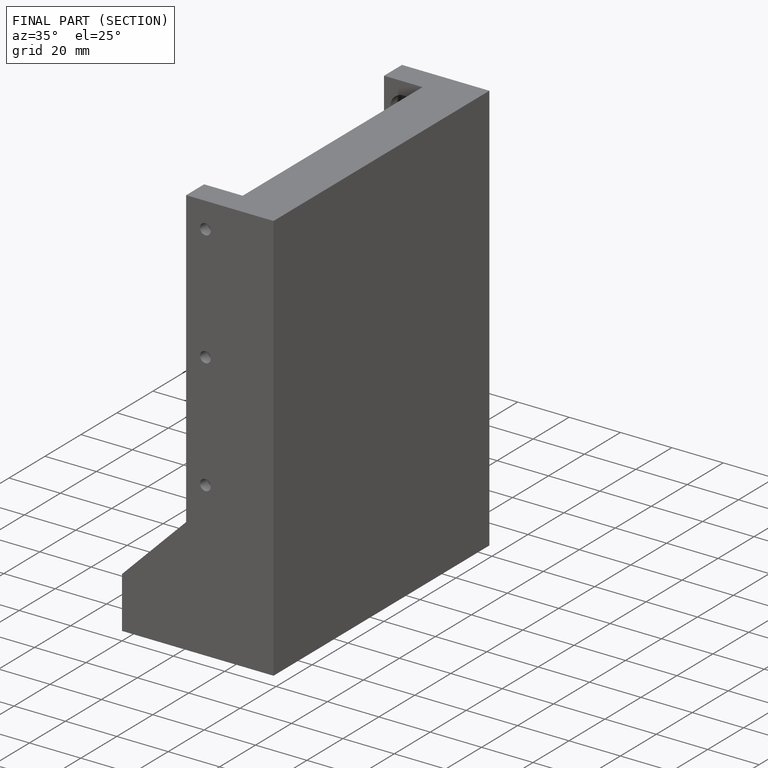
[diagram: finished part — half-section view (interior)]
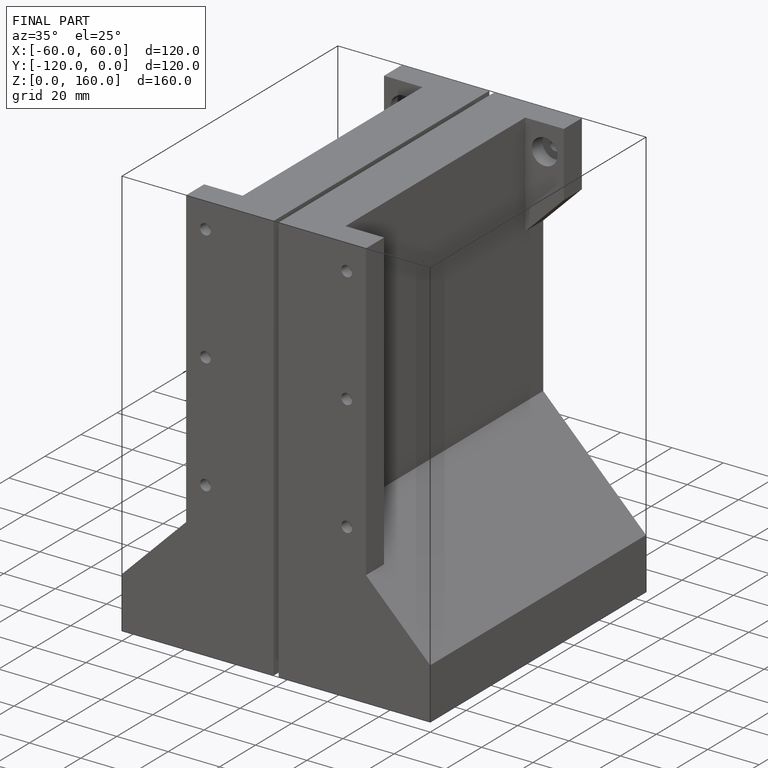
[diagram: finished part — iso view with bounding-box wireframe]
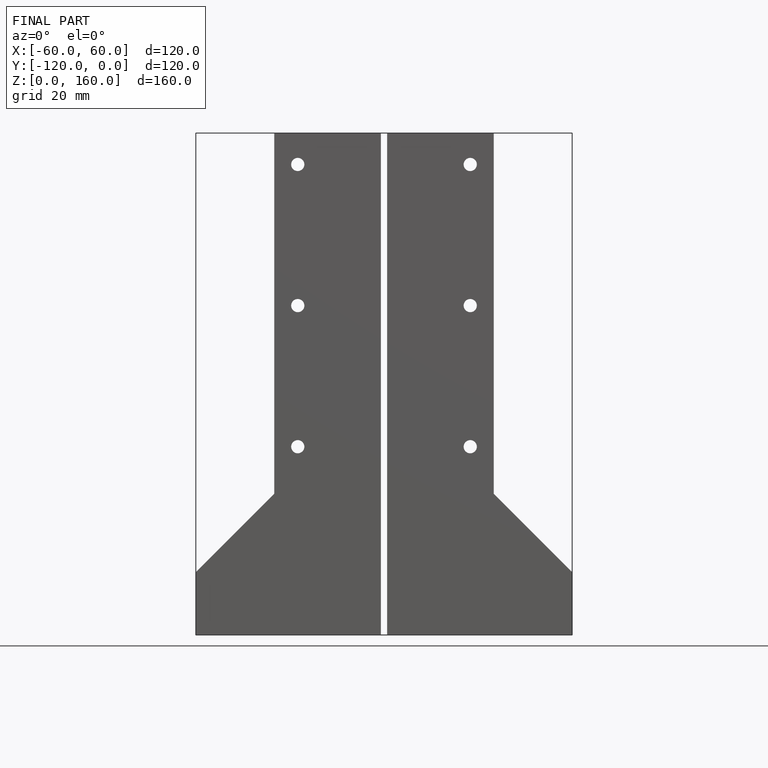
[diagram: finished part — front view with bounding-box wireframe]
